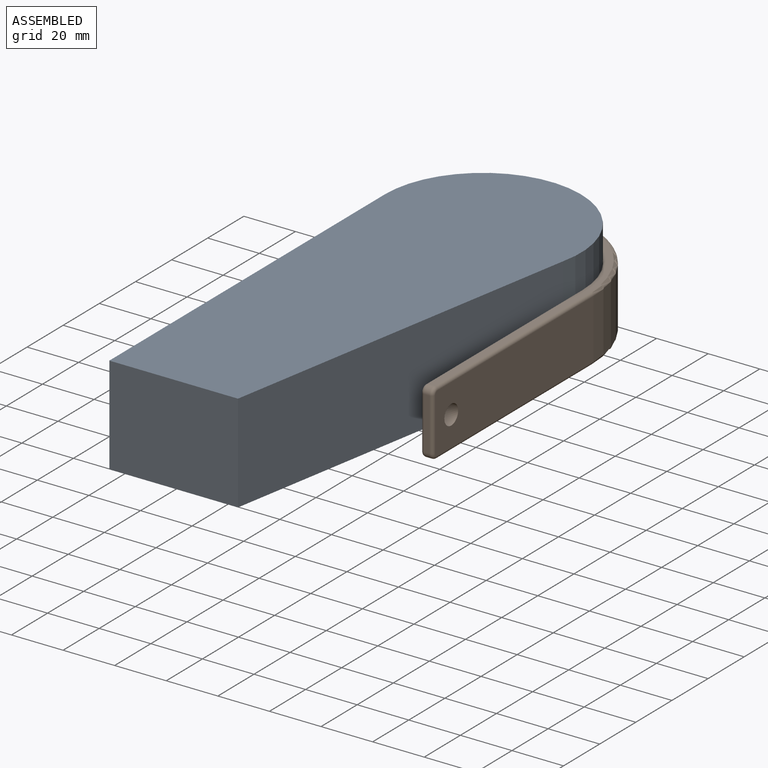
[diagram: assembled view]
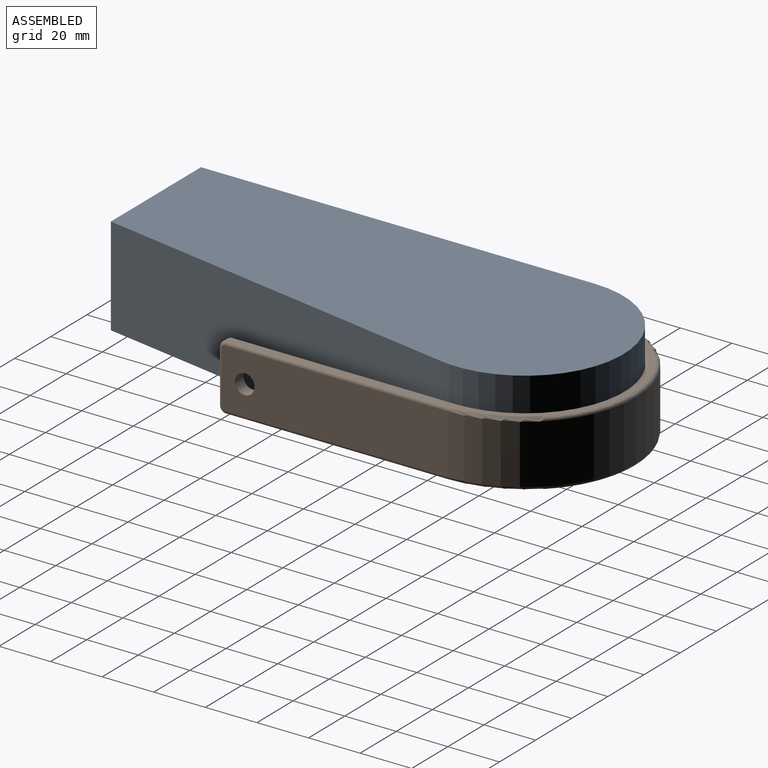
[diagram: assembled view, second angle]
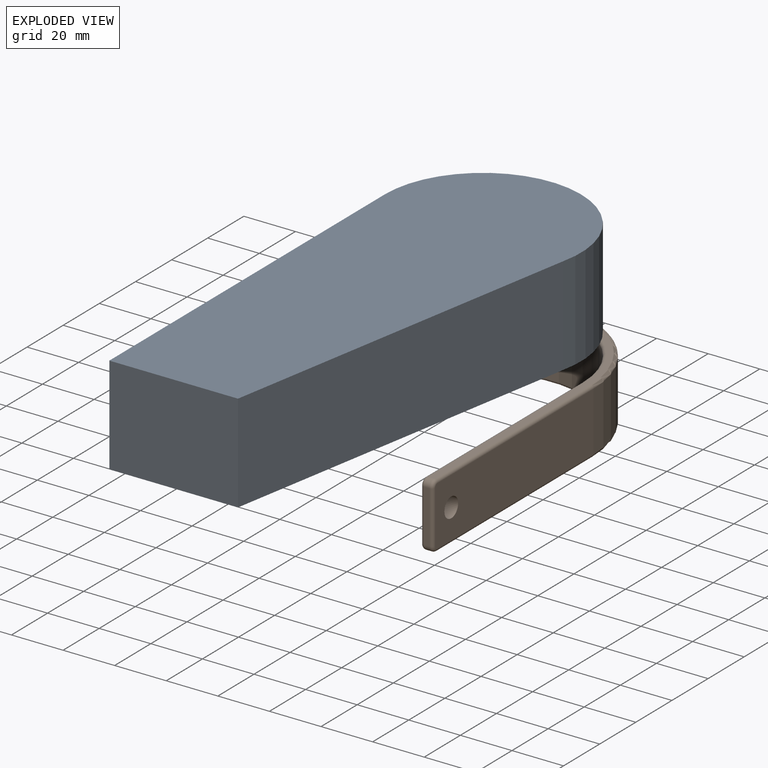
[diagram: exploded view]
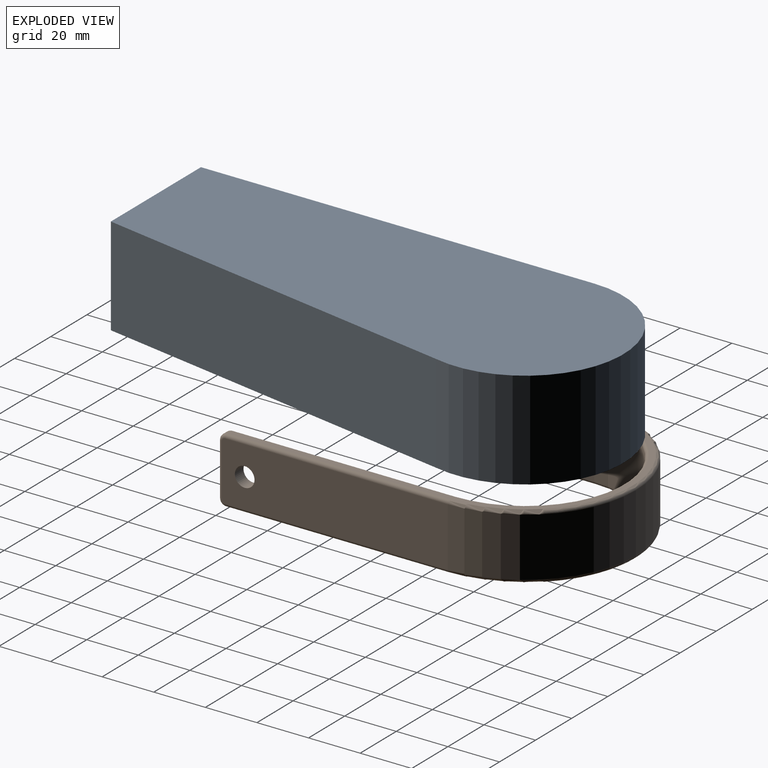
[diagram: exploded view, second angle]
ASSEMBLY  parts=2 mates=2
PART A: 6 faces, bbox 76.2x190.5x38.1 mm
  f0: cylinder r=38.1mm len=76.2mm, axis (0,0,-1), area 4890.5mm2, adj f1,f3,f4,f5
  f1: plane 152.4x38.1mm, normal (-1,0,0), area 5806.4mm2, adj f0,f2,f4,f5
  f2: plane 49.86x38.1mm, normal (0,-1,0), area 1899.7mm2, adj f1,f3,f4,f5
  f3: plane 143.81x38.1mm, normal (0.98,-0.17,0), area 5563.7mm2, adj f0,f2,f4,f5
  f4: plane 190.5x76.2mm, normal (0,0,1), area 11925.9mm2, adj f0,f1,f2,f3
  f5: plane 190.5x76.2mm, normal (0,0,-1), area 11925.9mm2, adj f0,f1,f2,f3
PART B: 40 faces, bbox 25.8x92.8x135.5 mm
  f0: plane 87.63x22.86mm, normal (0,1,0), area 1956.9mm2, adj f7,f26,f27,f28,f29,f30,f39
  f1: plane 20.32x2.24mm, normal (0,0,1), area 45.4mm2, adj f11,f13,f14,f26
  f2: plane 87.63x22.86mm, normal (0,-1,0), area 1956.9mm2, adj f3,f14,f15,f16,f17,f18,f39
  f3: cylinder r=42.88mm len=85.75mm, axis (-1,0,0), area 3079.2mm2, adj f2,f4,f19,f20
  f4: plane 87.63x22.86mm, normal (0,1,0), area 1956.9mm2, adj f3,f21,f22,f23,f24,f25,f38
  f5: plane 20.32x2.24mm, normal (0,0,1), area 45.4mm2, adj f10,f12,f25,f37
  f6: plane 87.63x22.86mm, normal (0,-1,0), area 1956.9mm2, adj f7,f33,f34,f35,f36,f37,f38
  f7: cylinder r=38.1mm len=76.2mm, axis (-1,0,0), area 2736.2mm2, adj f0,f6,f31,f32
  f8: plane 127.97x83.21mm, normal (1,0,0), area 670.4mm2, adj f12,f13,f17,f19,f21,f29,f31,f33
  f9: plane 127.97x83.21mm, normal (-1,0,0), area 670.4mm2, adj f10,f11,f18,f20,f22,f30,f32,f34
  f10: cylinder r=2.54mm len=2.54mm, axis (0,-1,0), area 8.9mm2, adj f5,f9,f24,f36
  f11: cylinder r=2.54mm len=2.54mm, axis (0,-1,0), area 8.9mm2, adj f1,f9,f16,f28
  f12: cylinder r=2.54mm len=2.54mm, axis (0,1,0), area 8.9mm2, adj f5,f8,f23,f35
  f13: cylinder r=2.54mm len=2.54mm, axis (0,1,0), area 8.9mm2, adj f1,f8,f15,f27
  f14: cylinder r=1.27mm len=20.32mm, axis (1,0,0), area 40.5mm2, adj f1,f2,f15,f16
  f15: torus R=1.27mm, axis (0,1,0), area 6.5mm2, adj f2,f13,f14,f17
  f16: torus R=1.27mm, axis (0,1,0), area 6.5mm2, adj f2,f11,f14,f18
  f17: cylinder r=1.27mm len=86.36mm, axis (0,0,1), area 172.3mm2, adj f2,f8,f15,f19
  f18: cylinder r=1.27mm len=86.36mm, axis (0,0,-1), area 172.3mm2, adj f2,f9,f16,f20
  f19: torus R=41.61mm, axis (1,0,0), area 265.8mm2, adj f3,f8,f17,f21
  f20: torus R=41.61mm, axis (1,0,0), area 265.8mm2, adj f3,f9,f18,f22
  f21: cylinder r=1.27mm len=86.36mm, axis (0,0,-1), area 172.3mm2, adj f4,f8,f19,f23
  f22: cylinder r=1.27mm len=86.36mm, axis (0,0,1), area 172.3mm2, adj f4,f9,f20,f24
  f23: torus R=1.27mm, axis (0,-1,0), area 6.5mm2, adj f4,f12,f21,f25
  f24: torus R=1.27mm, axis (0,-1,0), area 6.5mm2, adj f4,f10,f22,f25
  f25: cylinder r=1.27mm len=20.32mm, axis (1,0,0), area 40.5mm2, adj f4,f5,f23,f24
  f26: cylinder r=1.27mm len=20.32mm, axis (-1,0,0), area 40.5mm2, adj f0,f1,f27,f28
  f27: torus R=1.27mm, axis (0,1,0), area 6.5mm2, adj f0,f13,f26,f29
  f28: torus R=1.27mm, axis (0,1,0), area 6.5mm2, adj f0,f11,f26,f30
  f29: cylinder r=1.27mm len=86.36mm, axis (0,0,-1), area 172.3mm2, adj f0,f8,f27,f31
  f30: cylinder r=1.27mm len=86.36mm, axis (0,0,1), area 172.3mm2, adj f0,f9,f28,f32
  f31: torus R=39.37mm, axis (1,0,0), area 241.7mm2, adj f7,f8,f29,f33
  f32: torus R=39.37mm, axis (1,0,0), area 241.7mm2, adj f7,f9,f30,f34
  f33: cylinder r=1.27mm len=86.36mm, axis (0,0,1), area 172.3mm2, adj f6,f8,f31,f35
  f34: cylinder r=1.27mm len=86.36mm, axis (0,0,-1), area 172.3mm2, adj f6,f9,f32,f36
  f35: torus R=1.27mm, axis (0,-1,0), area 6.5mm2, adj f6,f12,f33,f37
  f36: torus R=1.27mm, axis (0,-1,0), area 6.5mm2, adj f6,f10,f34,f37
  f37: cylinder r=1.27mm len=20.32mm, axis (-1,0,0), area 40.5mm2, adj f5,f6,f35,f36
  f38: cylinder r=3.81mm len=7.62mm, axis (0,1,0), area 114.3mm2, adj f4,f6
  f39: cylinder r=3.81mm len=7.62mm, axis (0,1,0), area 114.3mm2, adj f0,f2
PLACE A t=(-43.81,29.32,-19.94)mm
PLACE B rot(axis=(0.58,0.58,-0.58),120deg) t=(-34.49,-3.03,5.46)mm
MATE slider B.f3 <-> A.f0  axis (0,0,1) through (-43.81,29.32,-7.24)mm
MATE planar A.f5 <-> B.f8  axis (0,0,-1) through (-48.64,-24.86,-19.94)mm
